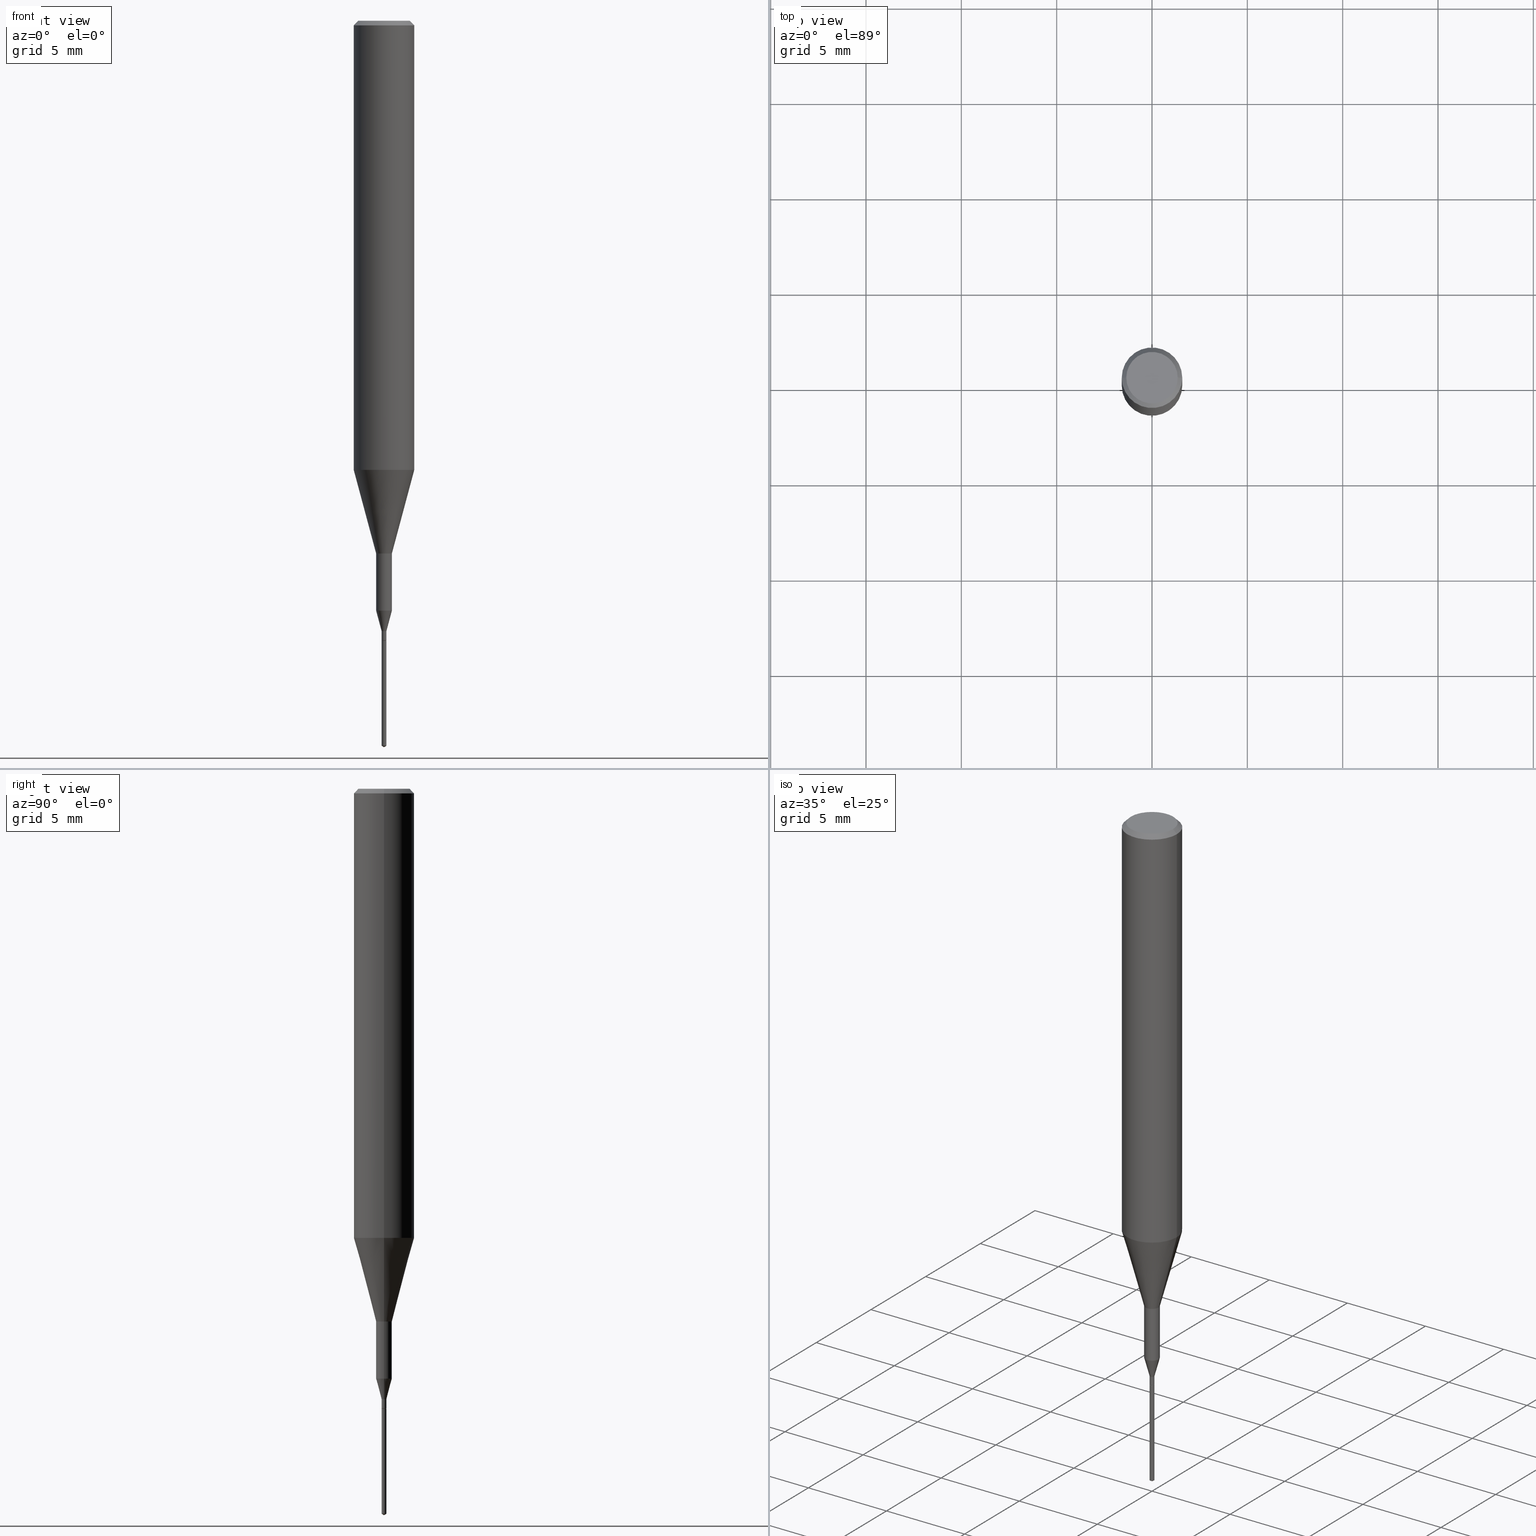
[diagram: canonical four-view strip — front | top / right | iso, engineering-drawing reading convention]
A machine part, canonical four-view strip (front | top / right | iso — engineering-drawing reading convention). The complete STEP part file that produces these views, byte-faithful:
ISO-10303-21;
HEADER;
FILE_DESCRIPTION (( 'STEP AP203' ),
    '1' );
FILE_NAME ('07109.STEP',
    '2024-04-19T13:30:04',
    ( '' ),
    ( '' ),
    'SwSTEP 2.0',
    'SolidWorks 2023',
    '' );
FILE_SCHEMA (( 'CONFIG_CONTROL_DESIGN' ));
ENDSEC;

DATA;
#1 = CARTESIAN_POINT ( 'NONE',  ( 3.130200071916974821E-29, -4.469096113719226630E-15, -1.280000000000000027 ) ) ;
#2 = CARTESIAN_POINT ( 'NONE',  ( 3.665052236019357010E-29, -5.241734381312934415E-15, -1.500000000000000222 ) ) ;
#3 = DIRECTION ( 'NONE',  ( 1.000000000000000000, -6.982962677686266711E-15, 4.876176775795936353E-29 ) ) ;
#4 = ADVANCED_FACE ( 'NONE', ( #55 ), #269, .T. ) ;
#5 = FACE_OUTER_BOUND ( 'NONE', #493, .T. ) ;
#6 = FACE_OUTER_BOUND ( 'NONE', #585, .T. ) ;
#7 = AXIS2_PLACEMENT_3D ( 'NONE', #145, #197, #147 ) ;
#8 = ORIENTED_EDGE ( 'NONE', *, *, #509, .T. ) ;
#9 = AXIS2_PLACEMENT_3D ( 'NONE', #525, #311, #396 ) ;
#10 = APPROVAL_DATE_TIME ( #108, #511 ) ;
#11 = EDGE_LOOP ( 'NONE', ( #356, #91, #225, #260 ) ) ;
#12 = EDGE_CURVE ( 'NONE', #519, #176, #377, .T. ) ;
#13 = COORDINATED_UNIVERSAL_TIME_OFFSET ( 5, 0, .BEHIND. ) ;
#14 = CARTESIAN_POINT ( 'NONE',  ( 0.06250000000000011102, -3.674409299134196572E-15, -0.9273926501499395458 ) ) ;
#15 = SECURITY_CLASSIFICATION_LEVEL ( 'unclassified' ) ;
#16 = CARTESIAN_POINT ( 'NONE',  ( 1.415359278996747967E-46, -2.020757941330909984E-32, -5.787680772770392401E-18 ) ) ;
#17 = CIRCLE ( 'NONE', #427, 0.01625000000000000056 ) ;
#18 = APPLICATION_PROTOCOL_DEFINITION ( 'international standard', 'config_control_design', 1994, #354 ) ;
#19 = DIRECTION ( 'NONE',  ( -6.982962677686265922E-15, -1.000000000000000000, 0.000000000000000000 ) ) ;
#20 = LOCAL_TIME ( 9, 30, 4.000000000000000000, #96 ) ;
#21 = MECHANICAL_CONTEXT ( 'NONE', #354, 'mechanical' ) ;
#22 = DIRECTION ( 'NONE',  ( -2.448441422466597749E-29, 3.487224383137281571E-15, 1.000000000000000000 ) ) ;
#23 = EDGE_CURVE ( 'NONE', #314, #226, #196, .T. ) ;
#24 = FACE_OUTER_BOUND ( 'NONE', #447, .T. ) ;
#25 = VECTOR ( 'NONE', #150, 39.37007874015748854 ) ;
#26 = CARTESIAN_POINT ( 'NONE',  ( -0.004900000000000062292, -4.399190132211608206E-15, -1.260399999999999965 ) ) ;
#27 = ORIENTED_EDGE ( 'NONE', *, *, #82, .T. ) ;
#28 = EDGE_CURVE ( 'NONE', #315, #226, #297, .T. ) ;
#29 = FACE_OUTER_BOUND ( 'NONE', #397, .T. ) ;
#30 = ORIENTED_EDGE ( 'NONE', *, *, #245, .T. ) ;
#31 = DIRECTION ( 'NONE',  ( 1.000000000000000000, -6.982962677686289588E-15, 0.000000000000000000 ) ) ;
#32 = ORIENTED_EDGE ( 'NONE', *, *, #28, .F. ) ;
#33 = CARTESIAN_POINT ( 'NONE',  ( -3.421651712063140079E-17, -0.004900000000004468489, -1.280000000000000027 ) ) ;
#34 = DIMENSIONAL_EXPONENTS ( 1.000000000000000000, 0.000000000000000000, 0.000000000000000000, 0.000000000000000000, 0.000000000000000000, 0.000000000000000000, 0.000000000000000000 ) ;
#35 = ORIENTED_EDGE ( 'NONE', *, *, #359, .F. ) ;
#36 = AXIS2_PLACEMENT_3D ( 'NONE', #137, #458, #275 ) ;
#37 = AXIS2_PLACEMENT_3D ( 'NONE', #393, #500, #495 ) ;
#38 = CARTESIAN_POINT ( 'NONE',  ( 0.06250000000000005551, -4.364351673553920638E-16, 3.047610484872462323E-30 ) ) ;
#39 = ORIENTED_EDGE ( 'NONE', *, *, #154, .F. ) ;
#40 = FACE_OUTER_BOUND ( 'NONE', #159, .T. ) ;
#41 = ORIENTED_EDGE ( 'NONE', *, *, #509, .F. ) ;
#42 = CONICAL_SURFACE ( 'NONE', #452, 0.06250000000000000000, 0.7853981633974453924 ) ;
#43 = LENGTH_MEASURE_WITH_UNIT ( LENGTH_MEASURE( 0.02539999999999999897 ), #542 );
#44 = ORIENTED_EDGE ( 'NONE', *, *, #346, .F. ) ;
#45 = CIRCLE ( 'NONE', #582, 0.004899999999999999842 ) ;
#46 = ADVANCED_FACE ( 'NONE', ( #590 ), #444, .T. ) ;
#47 = CARTESIAN_POINT ( 'NONE',  ( 7.076796394983739835E-47, -1.010378970665454992E-32, -2.893840386385196200E-18 ) ) ;
#48 = ORGANIZATION ( 'UNSPECIFIED', 'UNSPECIFIED', '' ) ;
#49 = FACE_OUTER_BOUND ( 'NONE', #257, .T. ) ;
#50 = CARTESIAN_POINT ( 'NONE',  ( 3.130200071916974821E-29, -4.469096113719226630E-15, -1.280000000000000027 ) ) ;
#51 = ORIENTED_EDGE ( 'NONE', *, *, #64, .T. ) ;
#52 = DIRECTION ( 'NONE',  ( -2.445468806185136597E-29, 3.491481338843145583E-15, 1.000000000000000000 ) ) ;
#53 = VECTOR ( 'NONE', #93, 39.37007874015748143 ) ;
#54 = ADVANCED_FACE ( 'NONE', ( #5 ), #279, .T. ) ;
#55 = FACE_OUTER_BOUND ( 'NONE', #221, .T. ) ;
#56 = APPROVAL_DATE_TIME ( #288, #503 ) ;
#57 = FACE_OUTER_BOUND ( 'NONE', #253, .T. ) ;
#58 = AXIS2_PLACEMENT_3D ( 'NONE', #47, #365, #233 ) ;
#59 =( NAMED_UNIT ( * ) PLANE_ANGLE_UNIT ( ) SI_UNIT ( $, .RADIAN. ) );
#60 = DIRECTION ( 'NONE',  ( 0.2588190451025214611, 1.565188264969620982E-15, 0.9659258262890679791 ) ) ;
#61 = CC_DESIGN_APPROVAL ( #511, ( #575 ) ) ;
#62 = COORDINATED_UNIVERSAL_TIME_OFFSET ( 5, 0, .BEHIND. ) ;
#63 = FACE_OUTER_BOUND ( 'NONE', #445, .T. ) ;
#64 = EDGE_CURVE ( 'NONE', #314, #315, #89, .T. ) ;
#65 = AXIS2_PLACEMENT_3D ( 'NONE', #126, #520, #489 ) ;
#66 = CARTESIAN_POINT ( 'NONE',  ( -0.06250000000000000000, 4.037025298037369984E-16, -0.009375000000000063838 ) ) ;
#67 = DIRECTION ( 'NONE',  ( -2.445468806185136597E-29, 3.491481338843145583E-15, 1.000000000000000000 ) ) ;
#68 = DIRECTION ( 'NONE',  ( 1.000000000000000000, -6.982962677686208335E-15, 0.000000000000000000 ) ) ;
#69 = EDGE_CURVE ( 'NONE', #483, #395, #408, .T. ) ;
#70 = VERTEX_POINT ( 'NONE', #504 ) ;
#71 = AXIS2_PLACEMENT_3D ( 'NONE', #265, #576, #165 ) ;
#72 = DIRECTION ( 'NONE',  ( -2.445468806185136877E-29, 3.491481338843145188E-15, 1.000000000000000000 ) ) ;
#73 = CIRCLE ( 'NONE', #410, 0.004900000000000062292 ) ;
#74 = ORIENTED_EDGE ( 'NONE', *, *, #69, .F. ) ;
#75 = FACE_OUTER_BOUND ( 'NONE', #482, .T. ) ;
#76 = VERTEX_POINT ( 'NONE', #286 ) ;
#77 = LOCAL_TIME ( 9, 30, 4.000000000000000000, #473 ) ;
#78 = ORIENTED_EDGE ( 'NONE', *, *, #331, .T. ) ;
#79 = CARTESIAN_POINT ( 'NONE',  ( 2.978681816311108345E-29, -4.252768201212663220E-15, -1.218041223334093370 ) ) ;
#80 = ORIENTED_EDGE ( 'NONE', *, *, #380, .F. ) ;
#81 = CIRCLE ( 'NONE', #276, 0.004899999999999999842 ) ;
#82 = EDGE_CURVE ( 'NONE', #519, #521, #366, .T. ) ;
#83 = DIRECTION ( 'NONE',  ( 0.2588190451025199068, 1.565188264969633603E-15, 0.9659258262890685343 ) ) ;
#84 = ORIENTED_EDGE ( 'NONE', *, *, #166, .F. ) ;
#85 = CARTESIAN_POINT ( 'NONE',  ( 2.267909797027042920E-29, -3.237974131778804114E-15, -0.9273926501499395458 ) ) ;
#86 = AXIS2_PLACEMENT_3D ( 'NONE', #50, #589, #449 ) ;
#87 = DIRECTION ( 'NONE',  ( -2.448441422466597749E-29, 3.487224383137281571E-15, 1.000000000000000000 ) ) ;
#88 = PLANE ( 'NONE',  #303 ) ;
#89 = LINE ( 'NONE', #547, #319 ) ;
#90 = DIRECTION ( 'NONE',  ( 1.000000000000000000, -6.982962677686289588E-15, 0.000000000000000000 ) ) ;
#91 = ORIENTED_EDGE ( 'NONE', *, *, #167, .T. ) ;
#92 = CARTESIAN_POINT ( 'NONE',  ( 0.000000000000000000, 0.000000000000000000, 0.000000000000000000 ) ) ;
#93 = DIRECTION ( 'NONE',  ( -2.445468806185136877E-29, 3.491481338843145188E-15, 1.000000000000000000 ) ) ;
#94 = CARTESIAN_POINT ( 'NONE',  ( 2.978681816311108345E-29, -4.252768201212663220E-15, -1.218041223334093370 ) ) ;
#95 = DIRECTION ( 'NONE',  ( -2.448441422466597749E-29, 3.487224383137281571E-15, 1.000000000000000000 ) ) ;
#96 = COORDINATED_UNIVERSAL_TIME_OFFSET ( 5, 0, .BEHIND. ) ;
#97 = CIRCLE ( 'NONE', #177, 0.06250000000000000000 ) ;
#98 = CARTESIAN_POINT ( 'NONE',  ( -0.01625000000000000056, -4.137305006651647035E-15, -1.218041223334093370 ) ) ;
#99 = DIRECTION ( 'NONE',  ( 1.000000000000000000, 0.000000000000000000, 0.000000000000000000 ) ) ;
#100 = CARTESIAN_POINT ( 'NONE',  ( -3.421651712062608214E-17, -0.004900000000005224829, -1.497055782966765225 ) ) ;
#101 = DESIGN_CONTEXT ( 'detailed design', #175, 'design' ) ;
#102 =( CONVERSION_BASED_UNIT ( 'INCH', #43 ) LENGTH_UNIT ( ) NAMED_UNIT ( #34 ) );
#103 = DIRECTION ( 'NONE',  ( -0.7071067811866119657, 7.493145998870586085E-15, 0.7071067811864829578 ) ) ;
#104 = EDGE_CURVE ( 'NONE', #70, #171, #163, .T. ) ;
#105 = APPROVAL_ROLE ( '' ) ;
#106 = VECTOR ( 'NONE', #184, 39.37007874015748143 ) ;
#107 = LINE ( 'NONE', #14, #386 ) ;
#108 = DATE_AND_TIME ( #471, #324 ) ;
#109 = CARTESIAN_POINT ( 'NONE',  ( -0.004899999999999990301, -4.432533778997560896E-15, -1.279500000000000082 ) ) ;
#110 = CONICAL_SURFACE ( 'NONE', #371, 0.01625000000000000056, 0.2617993877991485197 ) ;
#111 = EDGE_CURVE ( 'NONE', #70, #394, #372, .T. ) ;
#112 = CARTESIAN_POINT ( 'NONE',  ( 3.672662133699897044E-29, -5.230836574705923146E-15, -1.500000000000000222 ) ) ;
#113 = VERTEX_POINT ( 'NONE', #328 ) ;
#114 = DIRECTION ( 'NONE',  ( -6.982962677686265922E-15, -1.000000000000000000, 0.000000000000000000 ) ) ;
#115 = EDGE_LOOP ( 'NONE', ( #127, #264, #234, #270 ) ) ;
#116 = CONICAL_SURFACE ( 'NONE', #539, 0.01625000000000000056, 0.2617993877991485197 ) ;
#117 = DIRECTION ( 'NONE',  ( 1.000000000000000000, -6.982962677686258033E-15, 0.000000000000000000 ) ) ;
#118 = CIRCLE ( 'NONE', #280, 0.004900000000000062292 ) ;
#119 = ORIENTED_EDGE ( 'NONE', *, *, #298, .T. ) ;
#120 = ORIENTED_EDGE ( 'NONE', *, *, #331, .F. ) ;
#121 = CYLINDRICAL_SURFACE ( 'NONE', #291, 0.01624999999999999709 ) ;
#122 = EDGE_LOOP ( 'NONE', ( #541, #527, #523, #181 ) ) ;
#123 = ORIENTED_EDGE ( 'NONE', *, *, #359, .T. ) ;
#124 = ADVANCED_FACE ( 'NONE', ( #49 ), #284, .T. ) ;
#125 = CC_DESIGN_APPROVAL ( #170, ( #133 ) ) ;
#126 = CARTESIAN_POINT ( 'NONE',  ( 2.267909797027042920E-29, -3.237974131778804114E-15, -0.9273926501499395458 ) ) ;
#127 = ORIENTED_EDGE ( 'NONE', *, *, #245, .F. ) ;
#128 = DIRECTION ( 'NONE',  ( -2.445468806185136597E-29, 3.491481338843145583E-15, 1.000000000000000000 ) ) ;
#129 = EDGE_LOOP ( 'NONE', ( #168, #160, #32 ) ) ;
#130 = CARTESIAN_POINT ( 'NONE',  ( 2.690015686803650369E-29, -3.840629472727460101E-15, -1.100000000000000089 ) ) ;
#131 = ADVANCED_FACE ( 'NONE', ( #374 ), #463, .T. ) ;
#132 = CARTESIAN_POINT ( 'NONE',  ( 0.01624999999999999709, -1.134731435124018242E-16, 7.923787260668394963E-31 ) ) ;
#133 = SECURITY_CLASSIFICATION ( '', '', #15 ) ;
#134 = FACE_OUTER_BOUND ( 'NONE', #115, .T. ) ;
#135 = VERTEX_POINT ( 'NONE', #210 ) ;
#136 = DIRECTION ( 'NONE',  ( 1.000000000000000000, -6.982962677686258033E-15, 0.000000000000000000 ) ) ;
#137 = CARTESIAN_POINT ( 'NONE',  ( 3.661648441918723034E-29, -5.226018332581883339E-15, -1.497055782966765225 ) ) ;
#138 = CIRCLE ( 'NONE', #203, 0.004899999999999990301 ) ;
#139 = DIRECTION ( 'NONE',  ( -2.445468806185136597E-29, 3.491481338843145583E-15, 1.000000000000000000 ) ) ;
#140 = CARTESIAN_POINT ( 'NONE',  ( 3.130200071916974821E-29, -4.469096113719226630E-15, -1.280000000000000027 ) ) ;
#141 = CARTESIAN_POINT ( 'NONE',  ( 0.000000000000000000, 0.000000000000000000, 0.000000000000000000 ) ) ;
#142 = CARTESIAN_POINT ( 'NONE',  ( 3.130200071916974821E-29, -4.469096113719226630E-15, -1.280000000000000027 ) ) ;
#143 = PERSON_AND_ORGANIZATION ( #457, #48 ) ;
#144 = VECTOR ( 'NONE', #292, 39.37007874015748143 ) ;
#145 = CARTESIAN_POINT ( 'NONE',  ( 0.000000000000000000, 0.000000000000000000, 0.000000000000000000 ) ) ;
#146 = DATE_TIME_ROLE ( 'classification_date' ) ;
#147 = DIRECTION ( 'NONE',  ( 1.000000000000000000, -6.982962677686266711E-15, 4.876176775795935232E-29 ) ) ;
#148 = CC_DESIGN_PERSON_AND_ORGANIZATION_ASSIGNMENT ( #143, #198, ( #558 ) ) ;
#149 =( NAMED_UNIT ( * ) SI_UNIT ( $, .STERADIAN. ) SOLID_ANGLE_UNIT ( ) );
#150 = DIRECTION ( 'NONE',  ( 0.7071067811866119657, -2.468850131082932326E-15, 0.7071067811864829578 ) ) ;
#151 = APPROVAL_STATUS ( 'not_yet_approved' ) ;
#152 = CARTESIAN_POINT ( 'NONE',  ( -3.421651712063139463E-17, -0.004900000000004467622, -1.280000000000000027 ) ) ;
#153 = ORIENTED_EDGE ( 'NONE', *, *, #380, .T. ) ;
#154 = EDGE_CURVE ( 'NONE', #537, #113, #187, .T. ) ;
#155 = FACE_OUTER_BOUND ( 'NONE', #229, .T. ) ;
#156 = ORIENTED_EDGE ( 'NONE', *, *, #289, .F. ) ;
#157 = MANIFOLD_SOLID_BREP ( 'Body-Move/Copy2[1]', #581 ) ;
#158 = DIRECTION ( 'NONE',  ( -2.448441422466597749E-29, 3.487224383137281571E-15, 1.000000000000000000 ) ) ;
#159 = EDGE_LOOP ( 'NONE', ( #217, #501 ) ) ;
#160 = ORIENTED_EDGE ( 'NONE', *, *, #23, .T. ) ;
#161 = CARTESIAN_POINT ( 'NONE',  ( 3.481659405228151606E-17, 0.004899999999994773120, -1.497055782966765225 ) ) ;
#162 = VERTEX_POINT ( 'NONE', #421 ) ;
#163 = CIRCLE ( 'NONE', #588, 0.06250000000000011102 ) ;
#164 = ORIENTED_EDGE ( 'NONE', *, *, #111, .F. ) ;
#165 = DIRECTION ( 'NONE',  ( 1.000000000000000000, -6.982962677686266711E-15, 0.000000000000000000 ) ) ;
#166 = EDGE_CURVE ( 'NONE', #535, #519, #513, .T. ) ;
#167 = EDGE_CURVE ( 'NONE', #176, #362, #559, .T. ) ;
#168 = ORIENTED_EDGE ( 'NONE', *, *, #64, .F. ) ;
#169 = EDGE_CURVE ( 'NONE', #395, #171, #107, .T. ) ;
#170 = APPROVAL ( #299, 'UNSPECIFIED' ) ;
#171 = VERTEX_POINT ( 'NONE', #515 ) ;
#172 = DIRECTION ( 'NONE',  ( 1.000000000000000000, -6.982962677686267499E-15, 4.876176775795936353E-29 ) ) ;
#173 = EDGE_LOOP ( 'NONE', ( #39, #353, #119, #453 ) ) ;
#174 = CARTESIAN_POINT ( 'NONE',  ( 3.130200071916974821E-29, -4.469096113719226630E-15, -1.280000000000000027 ) ) ;
#175 = APPLICATION_CONTEXT ( 'configuration controlled 3d designs of mechanical parts and assemblies' ) ;
#176 = VERTEX_POINT ( 'NONE', #109 ) ;
#177 = AXIS2_PLACEMENT_3D ( 'NONE', #566, #341, #430 ) ;
#178 = EDGE_CURVE ( 'NONE', #76, #70, #472, .T. ) ;
#179 = CC_DESIGN_DATE_AND_TIME_ASSIGNMENT ( #295, #517, ( #558 ) ) ;
#180 = DIRECTION ( 'NONE',  ( 1.000000000000000000, -6.982962677686265922E-15, 0.000000000000000000 ) ) ;
#181 = ORIENTED_EDGE ( 'NONE', *, *, #461, .F. ) ;
#182 = CONICAL_SURFACE ( 'NONE', #249, 0.004399999999999999398, 0.7853981633975395393 ) ;
#183 = DIRECTION ( 'NONE',  ( -2.445468806185136597E-29, 3.491481338843145583E-15, 1.000000000000000000 ) ) ;
#184 = DIRECTION ( 'NONE',  ( -2.445468806185136877E-29, 3.491481338843145188E-15, 1.000000000000000000 ) ) ;
#185 = DIRECTION ( 'NONE',  ( 6.982962677686265922E-15, 1.000000000000000000, -3.487224383137281571E-15 ) ) ;
#186 = ORIENTED_EDGE ( 'NONE', *, *, #200, .F. ) ;
#187 = CIRCLE ( 'NONE', #266, 0.05312499999999999861 ) ;
#188 = EDGE_LOOP ( 'NONE', ( #490, #577, #350, #434 ) ) ;
#189 = DIRECTION ( 'NONE',  ( -2.445468806185136597E-29, 3.491481338843145583E-15, 1.000000000000000000 ) ) ;
#190 = DIRECTION ( 'NONE',  ( -5.985567269336013066E-15, -0.8571673007021206603, 0.5150380749100400557 ) ) ;
#191 = EDGE_CURVE ( 'NONE', #162, #317, #81, .T. ) ;
#192 = ADVANCED_FACE ( 'NONE', ( #57 ), #205, .T. ) ;
#193 = CC_DESIGN_DATE_AND_TIME_ASSIGNMENT ( #561, #146, ( #133 ) ) ;
#194 = AXIS2_PLACEMENT_3D ( 'NONE', #543, #364, #326 ) ;
#195 = DATE_AND_TIME ( #239, #77 ) ;
#196 = LINE ( 'NONE', #2, #278 ) ;
#197 = DIRECTION ( 'NONE',  ( -2.445468806185136597E-29, 3.491481338843145583E-15, 1.000000000000000000 ) ) ;
#198 = PERSON_AND_ORGANIZATION_ROLE ( 'creator' ) ;
#199 = AXIS2_PLACEMENT_3D ( 'NONE', #16, #381, #201 ) ;
#200 = EDGE_CURVE ( 'NONE', #532, #176, #244, .T. ) ;
#201 = DIRECTION ( 'NONE',  ( 1.000000000000000000, -6.982962677686266711E-15, 4.875930095424100059E-29 ) ) ;
#202 = AXIS2_PLACEMENT_3D ( 'NONE', #417, #273, #412 ) ;
#203 = AXIS2_PLACEMENT_3D ( 'NONE', #475, #357, #68 ) ;
#204 = PERSON_AND_ORGANIZATION ( #457, #48 ) ;
#205 = CYLINDRICAL_SURFACE ( 'NONE', #7, 0.06250000000000005551 ) ;
#206 = PERSON_AND_ORGANIZATION_ROLE ( 'design_owner' ) ;
#207 = CARTESIAN_POINT ( 'NONE',  ( -9.272647440831351840E-28, 1.320560130707024342E-13, 37.87007874015748143 ) ) ;
#208 = ORIENTED_EDGE ( 'NONE', *, *, #104, .F. ) ;
#209 = AXIS2_PLACEMENT_3D ( 'NONE', #254, #337, #426 ) ;
#210 = CARTESIAN_POINT ( 'NONE',  ( -0.01625000000000000056, -4.137305006651647035E-15, -1.218041223334093370 ) ) ;
#211 = ORIENTED_EDGE ( 'NONE', *, *, #200, .T. ) ;
#212 = DIRECTION ( 'NONE',  ( 0.7071067811865454633, -7.319954787623248157E-15, -0.7071067811865495711 ) ) ;
#213 = ORIENTED_EDGE ( 'NONE', *, *, #281, .F. ) ;
#214 = AXIS2_PLACEMENT_3D ( 'NONE', #92, #411, #3 ) ;
#215 = CYLINDRICAL_SURFACE ( 'NONE', #37, 0.06250000000000005551 ) ;
#216 = ORIENTED_EDGE ( 'NONE', *, *, #178, .F. ) ;
#217 = ORIENTED_EDGE ( 'NONE', *, *, #441, .T. ) ;
#218 = EDGE_CURVE ( 'NONE', #113, #394, #505, .T. ) ;
#219 = CARTESIAN_POINT ( 'NONE',  ( -0.06250000000000000000, -1.191264174815165938E-15, -0.009375000000000063838 ) ) ;
#220 = CC_DESIGN_PERSON_AND_ORGANIZATION_ASSIGNMENT ( #428, #422, ( #575 ) ) ;
#221 = EDGE_LOOP ( 'NONE', ( #392, #51, #35 ) ) ;
#222 = CARTESIAN_POINT ( 'NONE',  ( 3.130200071916974821E-29, -4.469096113719226630E-15, -1.280000000000000027 ) ) ;
#223 = ORIENTED_EDGE ( 'NONE', *, *, #388, .F. ) ;
#224 = DIRECTION ( 'NONE',  ( -2.445468806185136597E-29, 3.491481338843145583E-15, 1.000000000000000000 ) ) ;
#225 = ORIENTED_EDGE ( 'NONE', *, *, #470, .F. ) ;
#226 = VERTEX_POINT ( 'NONE', #100 ) ;
#227 = EDGE_CURVE ( 'NONE', #226, #317, #296, .T. ) ;
#228 = CARTESIAN_POINT ( 'NONE',  ( 0.05312499999999999861, -4.129888592719939842E-16, -5.787680772767651417E-18 ) ) ;
#229 = EDGE_LOOP ( 'NONE', ( #235, #574, #27, #223 ) ) ;
#230 = CYLINDRICAL_SURFACE ( 'NONE', #214, 0.004900000000000025863 ) ;
#231 = ORIENTED_EDGE ( 'NONE', *, *, #227, .T. ) ;
#232 = CIRCLE ( 'NONE', #9, 0.004899999999999998107 ) ;
#233 = DIRECTION ( 'NONE',  ( -1.000000000000000000, 6.982962677686265922E-15, -4.876176775795935793E-29 ) ) ;
#234 = ORIENTED_EDGE ( 'NONE', *, *, #431, .T. ) ;
#235 = ORIENTED_EDGE ( 'NONE', *, *, #167, .F. ) ;
#236 = DIRECTION ( 'NONE',  ( -2.445468806185136597E-29, 3.491481338843145583E-15, 1.000000000000000000 ) ) ;
#237 = ADVANCED_FACE ( 'NONE', ( #63 ), #116, .T. ) ;
#238 = EDGE_LOOP ( 'NONE', ( #216, #533, #587, #208 ) ) ;
#239 = CALENDAR_DATE ( 2024, 19, 4 ) ;
#240 = DIRECTION ( 'NONE',  ( 6.090539988449852588E-15, 0.8571673007021242130, 0.5150380749100341715 ) ) ;
#241 = AXIS2_PLACEMENT_3D ( 'NONE', #174, #189, #321 ) ;
#242 = COORDINATED_UNIVERSAL_TIME_OFFSET ( 5, 0, .BEHIND. ) ;
#243 = CONICAL_SURFACE ( 'NONE', #572, 0.06250000000000011102, 0.2617993877991501850 ) ;
#244 = LINE ( 'NONE', #385, #567 ) ;
#245 = EDGE_CURVE ( 'NONE', #362, #135, #429, .T. ) ;
#246 = PERSON_AND_ORGANIZATION_ROLE ( 'classification_officer' ) ;
#247 = DIRECTION ( 'NONE',  ( -2.445468806185136877E-29, 3.491481338843145188E-15, 1.000000000000000000 ) ) ;
#248 = CARTESIAN_POINT ( 'NONE',  ( 3.130200071916974821E-29, -4.469096113719226630E-15, -1.280000000000000027 ) ) ;
#249 = AXIS2_PLACEMENT_3D ( 'NONE', #222, #569, #31 ) ;
#250 = PERSON_AND_ORGANIZATION_ROLE ( 'creator' ) ;
#251 = CARTESIAN_POINT ( 'NONE',  ( 2.978681816311108345E-29, -4.252768201212663220E-15, -1.218041223334093370 ) ) ;
#252 = AXIS2_PLACEMENT_3D ( 'NONE', #546, #367, #272 ) ;
#253 = EDGE_LOOP ( 'NONE', ( #164, #439, #153, #345 ) ) ;
#254 = CARTESIAN_POINT ( 'NONE',  ( 2.690015686803650369E-29, -3.840629472727460101E-15, -1.100000000000000089 ) ) ;
#255 = CIRCLE ( 'NONE', #71, 0.06250000000000000000 ) ;
#256 = LINE ( 'NONE', #433, #480 ) ;
#257 = EDGE_LOOP ( 'NONE', ( #123, #524, #398, #401 ) ) ;
#258 = CARTESIAN_POINT ( 'NONE',  ( 0.000000000000000000, 0.000000000000000000, 0.000000000000000000 ) ) ;
#259 = CONICAL_SURFACE ( 'NONE', #241, 0.004399999999999999398, 0.7853981633975395393 ) ;
#260 = ORIENTED_EDGE ( 'NONE', *, *, #82, .F. ) ;
#261 = CC_DESIGN_PERSON_AND_ORGANIZATION_ASSIGNMENT ( #557, #206, ( #348 ) ) ;
#262 = DIRECTION ( 'NONE',  ( 1.000000000000000000, -6.982962677686258033E-15, 0.000000000000000000 ) ) ;
#263 = ORIENTED_EDGE ( 'NONE', *, *, #538, .T. ) ;
#264 = ORIENTED_EDGE ( 'NONE', *, *, #388, .T. ) ;
#265 = CARTESIAN_POINT ( 'NONE',  ( 2.292627005798581061E-31, -3.273263755165471417E-17, -0.009375000000000063838 ) ) ;
#266 = AXIS2_PLACEMENT_3D ( 'NONE', #510, #332, #294 ) ;
#267 = ORIENTED_EDGE ( 'NONE', *, *, #528, .F. ) ;
#268 = DIRECTION ( 'NONE',  ( 1.000000000000000000, -6.982962677686266711E-15, 4.876176775795936353E-29 ) ) ;
#269 = CONICAL_SURFACE ( 'NONE', #342, 65.52281426577137324, 1.029744258676674296 ) ;
#270 = ORIENTED_EDGE ( 'NONE', *, *, #339, .F. ) ;
#271 = ADVANCED_BREP_SHAPE_REPRESENTATION ( '07109', ( #157, #556, #378 ), #312 ) ;
#272 = DIRECTION ( 'NONE',  ( 1.000000000000000000, -6.982962677686267499E-15, 4.876176775795936353E-29 ) ) ;
#273 = DIRECTION ( 'NONE',  ( -2.445468806185136597E-29, 3.491481338843145583E-15, 1.000000000000000000 ) ) ;
#274 = DIRECTION ( 'NONE',  ( -2.445468806185136877E-29, 3.491481338843145188E-15, 1.000000000000000000 ) ) ;
#275 = DIRECTION ( 'NONE',  ( -6.982962677686265922E-15, -1.000000000000000000, 0.000000000000000000 ) ) ;
#276 = AXIS2_PLACEMENT_3D ( 'NONE', #248, #334, #19 ) ;
#277 = CARTESIAN_POINT ( 'NONE',  ( -0.01624999999999999709, 1.154631945610162595E-16, -7.993269521664220284E-31 ) ) ;
#278 = VECTOR ( 'NONE', #190, 39.37007874015748854 ) ;
#279 = CYLINDRICAL_SURFACE ( 'NONE', #440, 0.004899999999999998107 ) ;
#280 = AXIS2_PLACEMENT_3D ( 'NONE', #327, #52, #454 ) ;
#281 = EDGE_CURVE ( 'NONE', #395, #76, #560, .T. ) ;
#282 = EDGE_CURVE ( 'NONE', #315, #162, #290, .T. ) ;
#283 = CARTESIAN_POINT ( 'NONE',  ( 3.130200071916974821E-29, -4.469096113719226630E-15, -1.280000000000000027 ) ) ;
#284 = CYLINDRICAL_SURFACE ( 'NONE', #477, 0.004899999999999998107 ) ;
#285 = CARTESIAN_POINT ( 'NONE',  ( 0.004899999999999990301, -4.501566890170468963E-15, -1.279500000000000082 ) ) ;
#286 = CARTESIAN_POINT ( 'NONE',  ( -0.01624999999999999709, -3.931235642409045081E-15, -1.100000000000000089 ) ) ;
#287 = VECTOR ( 'NONE', #22, 39.37007874015748143 ) ;
#288 = DATE_AND_TIME ( #563, #20 ) ;
#289 = EDGE_CURVE ( 'NONE', #113, #537, #432, .T. ) ;
#290 = LINE ( 'NONE', #423, #287 ) ;
#291 = AXIS2_PLACEMENT_3D ( 'NONE', #399, #584, #172 ) ;
#292 = DIRECTION ( 'NONE',  ( -2.448441422466597749E-29, 3.487224383137281571E-15, 1.000000000000000000 ) ) ;
#293 = APPROVAL_DATE_TIME ( #195, #170 ) ;
#294 = DIRECTION ( 'NONE',  ( 1.000000000000000000, -6.982962677686266711E-15, 4.875930095424100059E-29 ) ) ;
#295 = DATE_AND_TIME ( #507, #349 ) ;
#296 = LINE ( 'NONE', #152, #144 ) ;
#297 = CIRCLE ( 'NONE', #36, 0.004899999999999998107 ) ;
#298 = EDGE_CURVE ( 'NONE', #437, #394, #97, .T. ) ;
#299 = APPROVAL_STATUS ( 'not_yet_approved' ) ;
#300 = ADVANCED_FACE ( 'NONE', ( #24 ), #387, .F. ) ;
#301 = EDGE_CURVE ( 'NONE', #394, #437, #255, .T. ) ;
#302 = DIRECTION ( 'NONE',  ( 1.000000000000000000, -6.982962677686258033E-15, 0.000000000000000000 ) ) ;
#303 = AXIS2_PLACEMENT_3D ( 'NONE', #283, #544, #185 ) ;
#304 = FACE_OUTER_BOUND ( 'NONE', #122, .T. ) ;
#305 = AXIS2_PLACEMENT_3D ( 'NONE', #306, #352, #262 ) ;
#306 = CARTESIAN_POINT ( 'NONE',  ( 2.978681816311108345E-29, -4.252768201212663220E-15, -1.218041223334093370 ) ) ;
#307 = ADVANCED_FACE ( 'NONE', ( #344 ), #42, .T. ) ;
#308 = ORIENTED_EDGE ( 'NONE', *, *, #282, .F. ) ;
#309 = CLOSED_SHELL ( 'NONE', ( #46, #451, #424, #526, #237, #484, #555, #300, #400, #382, #502, #402, #548, #192, #307, #549 ) ) ;
#310 = AXIS2_PLACEMENT_3D ( 'NONE', #130, #183, #460 ) ;
#311 = DIRECTION ( 'NONE',  ( -2.448441422466597749E-29, 3.487224383137281571E-15, 1.000000000000000000 ) ) ;
#312 =( GEOMETRIC_REPRESENTATION_CONTEXT ( 3 ) GLOBAL_UNCERTAINTY_ASSIGNED_CONTEXT ( ( #335 ) ) GLOBAL_UNIT_ASSIGNED_CONTEXT ( ( #102, #59, #149 ) ) REPRESENTATION_CONTEXT ( 'NONE', 'WORKASPACE' ) );
#313 = ORIENTED_EDGE ( 'NONE', *, *, #470, .T. ) ;
#314 = VERTEX_POINT ( 'NONE', #112 ) ;
#315 = VERTEX_POINT ( 'NONE', #161 ) ;
#316 = DIRECTION ( 'NONE',  ( 1.000000000000000000, -6.982962677686265922E-15, 4.876176775795935793E-29 ) ) ;
#317 = VERTEX_POINT ( 'NONE', #33 ) ;
#318 = DIRECTION ( 'NONE',  ( -2.445468806185136597E-29, 3.491481338843145583E-15, 1.000000000000000000 ) ) ;
#319 = VECTOR ( 'NONE', #240, 39.37007874015748143 ) ;
#320 = ORIENTED_EDGE ( 'NONE', *, *, #528, .T. ) ;
#321 = DIRECTION ( 'NONE',  ( 1.000000000000000000, -6.982962677686289588E-15, 0.000000000000000000 ) ) ;
#322 = CARTESIAN_POINT ( 'NONE',  ( 3.130200071916974821E-29, -4.469096113719226630E-15, -1.280000000000000027 ) ) ;
#323 = EDGE_LOOP ( 'NONE', ( #78, #263, #213, #74 ) ) ;
#324 = LOCAL_TIME ( 9, 30, 4.000000000000000000, #13 ) ;
#325 = CARTESIAN_POINT ( 'NONE',  ( -0.004399999999999999398, -4.435183006171671308E-15, -1.280000000000000027 ) ) ;
#326 = DIRECTION ( 'NONE',  ( -1.000000000000000000, 6.982962677686266711E-15, 0.000000000000000000 ) ) ;
#327 = CARTESIAN_POINT ( 'NONE',  ( 3.082268883315746308E-29, -4.400663079477901323E-15, -1.260399999999999965 ) ) ;
#328 = CARTESIAN_POINT ( 'NONE',  ( -0.05312499999999999861, 3.873362110279099094E-16, -5.787680772773044021E-18 ) ) ;
#329 = LINE ( 'NONE', #277, #419 ) ;
#330 = DIRECTION ( 'NONE',  ( -6.982962677686265922E-15, -1.000000000000000000, 0.000000000000000000 ) ) ;
#331 = EDGE_CURVE ( 'NONE', #483, #135, #351, .T. ) ;
#332 = DIRECTION ( 'NONE',  ( -2.445468806185136597E-29, 3.491481338843145583E-15, 1.000000000000000000 ) ) ;
#333 = VECTOR ( 'NONE', #462, 39.37007874015748143 ) ;
#334 = DIRECTION ( 'NONE',  ( -2.448441422466597749E-29, 3.487224383137281571E-15, 1.000000000000000000 ) ) ;
#335 = UNCERTAINTY_MEASURE_WITH_UNIT (LENGTH_MEASURE( 1.000000000000000082E-05 ), #102, 'distance_accuracy_value', 'NONE');
#336 = APPLICATION_PROTOCOL_DEFINITION ( 'international standard', 'config_control_design', 1994, #175 ) ;
#337 = DIRECTION ( 'NONE',  ( -2.445468806185136597E-29, 3.491481338843145583E-15, 1.000000000000000000 ) ) ;
#338 = DIRECTION ( 'NONE',  ( -6.982962677686266711E-15, -1.000000000000000000, 3.468864327941438414E-15 ) ) ;
#339 = EDGE_CURVE ( 'NONE', #135, #483, #17, .T. ) ;
#340 = PERSON_AND_ORGANIZATION ( #457, #48 ) ;
#341 = DIRECTION ( 'NONE',  ( -2.445468806185136597E-29, 3.491481338843145583E-15, 1.000000000000000000 ) ) ;
#342 = AXIS2_PLACEMENT_3D ( 'NONE', #414, #496, #368 ) ;
#343 = VECTOR ( 'NONE', #212, 39.37007874015748143 ) ;
#344 = FACE_OUTER_BOUND ( 'NONE', #583, .T. ) ;
#345 = ORIENTED_EDGE ( 'NONE', *, *, #301, .F. ) ;
#346 = EDGE_CURVE ( 'NONE', #537, #437, #478, .T. ) ;
#347 = DIRECTION ( 'NONE',  ( -2.438088387897960049E-29, 3.491481338843145188E-15, 1.000000000000000000 ) ) ;
#348 = PRODUCT ( '07109', '07109', '', ( #21 ) ) ;
#349 = LOCAL_TIME ( 9, 30, 4.000000000000000000, #242 ) ;
#350 = ORIENTED_EDGE ( 'NONE', *, *, #568, .F. ) ;
#351 = CIRCLE ( 'NONE', #305, 0.01625000000000000056 ) ;
#352 = DIRECTION ( 'NONE',  ( -2.445468806185136597E-29, 3.491481338843145583E-15, 1.000000000000000000 ) ) ;
#353 = ORIENTED_EDGE ( 'NONE', *, *, #346, .T. ) ;
#354 = APPLICATION_CONTEXT ( 'configuration controlled 3d designs of mechanical parts and assemblies' ) ;
#355 = DIRECTION ( 'NONE',  ( -2.445468806185136597E-29, 3.491481338843145583E-15, 1.000000000000000000 ) ) ;
#356 = ORIENTED_EDGE ( 'NONE', *, *, #12, .T. ) ;
#357 = DIRECTION ( 'NONE',  ( -2.445468806185136597E-29, 3.491481338843145583E-15, 1.000000000000000000 ) ) ;
#358 = ORIENTED_EDGE ( 'NONE', *, *, #431, .F. ) ;
#359 = EDGE_CURVE ( 'NONE', #226, #315, #232, .T. ) ;
#360 = CARTESIAN_POINT ( 'NONE',  ( 0.004900000000000062292, -4.434879596598564371E-15, -1.260399999999999965 ) ) ;
#361 = VECTOR ( 'NONE', #466, 39.37007874015748143 ) ;
#362 = VERTEX_POINT ( 'NONE', #26 ) ;
#363 = AXIS2_PLACEMENT_3D ( 'NONE', #258, #318, #268 ) ;
#364 = DIRECTION ( 'NONE',  ( 2.445468806185136597E-29, -3.491481338843145583E-15, -1.000000000000000000 ) ) ;
#365 = DIRECTION ( 'NONE',  ( 2.438088387897960049E-29, -3.491481338843145188E-15, -1.000000000000000000 ) ) ;
#366 = LINE ( 'NONE', #545, #333 ) ;
#367 = DIRECTION ( 'NONE',  ( -2.445468806185136597E-29, 3.491481338843145583E-15, 1.000000000000000000 ) ) ;
#368 = DIRECTION ( 'NONE',  ( -6.982962677686266711E-15, -1.000000000000000000, 3.468864327941438414E-15 ) ) ;
#369 = CYLINDRICAL_SURFACE ( 'NONE', #252, 0.01624999999999999709 ) ;
#370 = ORIENTED_EDGE ( 'NONE', *, *, #166, .T. ) ;
#371 = AXIS2_PLACEMENT_3D ( 'NONE', #94, #128, #136 ) ;
#372 = LINE ( 'NONE', #554, #53 ) ;
#373 = PERSON_AND_ORGANIZATION ( #457, #48 ) ;
#374 = FACE_OUTER_BOUND ( 'NONE', #129, .T. ) ;
#375 = VECTOR ( 'NONE', #247, 39.37007874015748143 ) ;
#376 = CARTESIAN_POINT ( 'NONE',  ( -0.06250000000000011102, -2.793884921928740709E-15, -0.9273926501499395458 ) ) ;
#377 = CIRCLE ( 'NONE', #202, 0.004899999999999990301 ) ;
#378 = AXIS2_PLACEMENT_3D ( 'NONE', #141, #553, #99 ) ;
#379 = APPROVAL_STATUS ( 'not_yet_approved' ) ;
#380 = EDGE_CURVE ( 'NONE', #171, #437, #438, .T. ) ;
#381 = DIRECTION ( 'NONE',  ( -2.445468806185136597E-29, 3.491481338843145583E-15, 1.000000000000000000 ) ) ;
#382 = ADVANCED_FACE ( 'NONE', ( #155 ), #522, .T. ) ;
#383 = LOCAL_TIME ( 9, 30, 4.000000000000000000, #62 ) ;
#384 = CALENDAR_DATE ( 2024, 19, 4 ) ;
#385 = CARTESIAN_POINT ( 'NONE',  ( -0.004399999999999999398, -4.437832233345782509E-15, -1.280000000000000027 ) ) ;
#386 = VECTOR ( 'NONE', #60, 39.37007874015748143 ) ;
#387 = PLANE ( 'NONE',  #506 ) ;
#388 = EDGE_CURVE ( 'NONE', #362, #521, #73, .T. ) ;
#389 = AXIS2_PLACEMENT_3D ( 'NONE', #551, #139, #180 ) ;
#390 = DIRECTION ( 'NONE',  ( 1.000000000000000000, -6.982962677686303787E-15, 0.000000000000000000 ) ) ;
#391 = ORIENTED_EDGE ( 'NONE', *, *, #218, .T. ) ;
#392 = ORIENTED_EDGE ( 'NONE', *, *, #23, .F. ) ;
#393 = CARTESIAN_POINT ( 'NONE',  ( 0.000000000000000000, 0.000000000000000000, 0.000000000000000000 ) ) ;
#394 = VERTEX_POINT ( 'NONE', #219 ) ;
#395 = VERTEX_POINT ( 'NONE', #486 ) ;
#396 = DIRECTION ( 'NONE',  ( -6.982962677686265922E-15, -1.000000000000000000, 0.000000000000000000 ) ) ;
#397 = EDGE_LOOP ( 'NONE', ( #487, #403, #578, #80 ) ) ;
#398 = ORIENTED_EDGE ( 'NONE', *, *, #441, .F. ) ;
#399 = CARTESIAN_POINT ( 'NONE',  ( 0.000000000000000000, 0.000000000000000000, 0.000000000000000000 ) ) ;
#400 = ADVANCED_FACE ( 'NONE', ( #75 ), #182, .T. ) ;
#401 = ORIENTED_EDGE ( 'NONE', *, *, #227, .F. ) ;
#402 = ADVANCED_FACE ( 'NONE', ( #304 ), #121, .T. ) ;
#403 = ORIENTED_EDGE ( 'NONE', *, *, #111, .T. ) ;
#404 = FACE_OUTER_BOUND ( 'NONE', #238, .T. ) ;
#405 = ORIENTED_EDGE ( 'NONE', *, *, #154, .T. ) ;
#406 = DIRECTION ( 'NONE',  ( 1.000000000000000000, -6.982962677686265922E-15, 0.000000000000000000 ) ) ;
#407 = VECTOR ( 'NONE', #464, 39.37007874015748143 ) ;
#408 = LINE ( 'NONE', #132, #106 ) ;
#409 = EDGE_CURVE ( 'NONE', #176, #519, #138, .T. ) ;
#410 = AXIS2_PLACEMENT_3D ( 'NONE', #481, #355, #390 ) ;
#411 = DIRECTION ( 'NONE',  ( -2.445468806185136597E-29, 3.491481338843145583E-15, 1.000000000000000000 ) ) ;
#412 = DIRECTION ( 'NONE',  ( 1.000000000000000000, -6.982962677686208335E-15, 0.000000000000000000 ) ) ;
#413 = CARTESIAN_POINT ( 'NONE',  ( 0.01625000000000000056, -4.366241344725064897E-15, -1.218041223334093370 ) ) ;
#414 = CARTESIAN_POINT ( 'NONE',  ( -9.272647440831351840E-28, 1.320560130707024342E-13, 37.87007874015748143 ) ) ;
#415 = CC_DESIGN_SECURITY_CLASSIFICATION ( #133, ( #575 ) ) ;
#416 = FACE_OUTER_BOUND ( 'NONE', #479, .T. ) ;
#417 = CARTESIAN_POINT ( 'NONE',  ( 3.128977337513882580E-29, -4.467350373049805126E-15, -1.279500000000000082 ) ) ;
#418 = CARTESIAN_POINT ( 'NONE',  ( 2.267909797027042920E-29, -3.237974131778804114E-15, -0.9273926501499395458 ) ) ;
#419 = VECTOR ( 'NONE', #274, 39.37007874015748143 ) ;
#420 = APPROVAL_ROLE ( '' ) ;
#421 = CARTESIAN_POINT ( 'NONE',  ( 3.481659405228154687E-17, 0.004899999999995530327, -1.280000000000000027 ) ) ;
#422 = PERSON_AND_ORGANIZATION_ROLE ( 'design_supplier' ) ;
#423 = CARTESIAN_POINT ( 'NONE',  ( 3.481659405227619125E-17, 0.004899999999995529459, -1.280000000000000027 ) ) ;
#424 = ADVANCED_FACE ( 'NONE', ( #536 ), #508, .T. ) ;
#425 = ORIENTED_EDGE ( 'NONE', *, *, #12, .F. ) ;
#426 = DIRECTION ( 'NONE',  ( 1.000000000000000000, -6.982962677686259611E-15, 0.000000000000000000 ) ) ;
#427 = AXIS2_PLACEMENT_3D ( 'NONE', #79, #224, #117 ) ;
#428 = PERSON_AND_ORGANIZATION ( #457, #48 ) ;
#429 = LINE ( 'NONE', #98, #361 ) ;
#430 = DIRECTION ( 'NONE',  ( 1.000000000000000000, -6.982962677686266711E-15, 0.000000000000000000 ) ) ;
#431 = EDGE_CURVE ( 'NONE', #521, #483, #256, .T. ) ;
#432 = CIRCLE ( 'NONE', #199, 0.05312499999999999861 ) ;
#433 = CARTESIAN_POINT ( 'NONE',  ( 0.01625000000000000056, -4.366241344725064897E-15, -1.218041223334093370 ) ) ;
#434 = ORIENTED_EDGE ( 'NONE', *, *, #169, .F. ) ;
#435 = CARTESIAN_POINT ( 'NONE',  ( 3.130200071916974821E-29, -4.469096113719226630E-15, -1.280000000000000027 ) ) ;
#436 = CIRCLE ( 'NONE', #86, 0.004399999999999999398 ) ;
#437 = VERTEX_POINT ( 'NONE', #573 ) ;
#438 = LINE ( 'NONE', #38, #499 ) ;
#439 = ORIENTED_EDGE ( 'NONE', *, *, #104, .T. ) ;
#440 = AXIS2_PLACEMENT_3D ( 'NONE', #140, #95, #330 ) ;
#441 = EDGE_CURVE ( 'NONE', #317, #162, #45, .T. ) ;
#442 = CARTESIAN_POINT ( 'NONE',  ( 2.292627005798581061E-31, -3.273263755165471417E-17, -0.009375000000000063838 ) ) ;
#443 = ORIENTED_EDGE ( 'NONE', *, *, #191, .F. ) ;
#444 = CONICAL_SURFACE ( 'NONE', #194, 0.06250000000000000000, 0.7853981633974453924 ) ;
#445 = EDGE_LOOP ( 'NONE', ( #313, #30, #120, #358 ) ) ;
#446 = DIRECTION ( 'NONE',  ( -1.000000000000000000, 6.982962677686266711E-15, 0.000000000000000000 ) ) ;
#447 = EDGE_LOOP ( 'NONE', ( #267, #41 ) ) ;
#448 = AXIS2_PLACEMENT_3D ( 'NONE', #1, #497, #90 ) ;
#449 = DIRECTION ( 'NONE',  ( 1.000000000000000000, -6.982962677686289588E-15, 0.000000000000000000 ) ) ;
#450 = ORIENTED_EDGE ( 'NONE', *, *, #289, .T. ) ;
#451 = ADVANCED_FACE ( 'NONE', ( #29 ), #215, .T. ) ;
#452 = AXIS2_PLACEMENT_3D ( 'NONE', #442, #531, #446 ) ;
#453 = ORIENTED_EDGE ( 'NONE', *, *, #218, .F. ) ;
#454 = DIRECTION ( 'NONE',  ( 1.000000000000000000, -6.982962677686303787E-15, 0.000000000000000000 ) ) ;
#455 = DIRECTION ( 'NONE',  ( 1.000000000000000000, -6.982962677686265922E-15, 0.000000000000000000 ) ) ;
#456 = FACE_OUTER_BOUND ( 'NONE', #11, .T. ) ;
#457 = PERSON ( 'UNSPECIFIED', 'UNSPECIFIED', 'UNSPECIFIED', ('UNSPECIFIED'), ('UNSPECIFIED'), ('UNSPECIFIED') ) ;
#458 = DIRECTION ( 'NONE',  ( -2.448441422466597749E-29, 3.487224383137281571E-15, 1.000000000000000000 ) ) ;
#459 = CC_DESIGN_APPROVAL ( #503, ( #558 ) ) ;
#460 = DIRECTION ( 'NONE',  ( 1.000000000000000000, -6.982962677686259611E-15, 0.000000000000000000 ) ) ;
#461 = EDGE_CURVE ( 'NONE', #76, #395, #529, .T. ) ;
#462 = DIRECTION ( 'NONE',  ( -2.445468806185136877E-29, 3.491481338843145188E-15, 1.000000000000000000 ) ) ;
#463 = CONICAL_SURFACE ( 'NONE', #516, 65.52281426577137324, 1.029744258676674296 ) ;
#464 = DIRECTION ( 'NONE',  ( -0.7071067811865454633, 2.468850131082235367E-15, -0.7071067811865495711 ) ) ;
#465 = PERSON_AND_ORGANIZATION ( #457, #48 ) ;
#466 = DIRECTION ( 'NONE',  ( -0.2588190451025199068, 5.211531920934540787E-15, 0.9659258262890685343 ) ) ;
#467 = CC_DESIGN_PERSON_AND_ORGANIZATION_ASSIGNMENT ( #514, #250, ( #575 ) ) ;
#468 = SHAPE_DEFINITION_REPRESENTATION ( #570, #271 ) ;
#469 = DIRECTION ( 'NONE',  ( -2.448441422466597749E-29, 3.487224383137281571E-15, 1.000000000000000000 ) ) ;
#470 = EDGE_CURVE ( 'NONE', #521, #362, #118, .T. ) ;
#471 = CALENDAR_DATE ( 2024, 19, 4 ) ;
#472 = LINE ( 'NONE', #376, #488 ) ;
#473 = COORDINATED_UNIVERSAL_TIME_OFFSET ( 5, 0, .BEHIND. ) ;
#474 = DIRECTION ( 'NONE',  ( -6.982962677686265922E-15, -1.000000000000000000, 0.000000000000000000 ) ) ;
#475 = CARTESIAN_POINT ( 'NONE',  ( 3.128977337513882580E-29, -4.467350373049805126E-15, -1.279500000000000082 ) ) ;
#476 = ORIENTED_EDGE ( 'NONE', *, *, #301, .T. ) ;
#477 = AXIS2_PLACEMENT_3D ( 'NONE', #322, #87, #474 ) ;
#478 = LINE ( 'NONE', #579, #343 ) ;
#479 = EDGE_LOOP ( 'NONE', ( #450, #405 ) ) ;
#480 = VECTOR ( 'NONE', #83, 39.37007874015748143 ) ;
#481 = CARTESIAN_POINT ( 'NONE',  ( 3.082268883315746308E-29, -4.400663079477901323E-15, -1.260399999999999965 ) ) ;
#482 = EDGE_LOOP ( 'NONE', ( #186, #8, #370, #580 ) ) ;
#483 = VERTEX_POINT ( 'NONE', #413 ) ;
#484 = ADVANCED_FACE ( 'NONE', ( #456 ), #230, .T. ) ;
#485 = CC_DESIGN_PERSON_AND_ORGANIZATION_ASSIGNMENT ( #465, #246, ( #133 ) ) ;
#486 = CARTESIAN_POINT ( 'NONE',  ( 0.01624999999999999709, -3.954102616239861778E-15, -1.100000000000000089 ) ) ;
#487 = ORIENTED_EDGE ( 'NONE', *, *, #568, .T. ) ;
#488 = VECTOR ( 'NONE', #562, 39.37007874015748143 ) ;
#489 = DIRECTION ( 'NONE',  ( 1.000000000000000000, -6.982962677686265922E-15, 0.000000000000000000 ) ) ;
#490 = ORIENTED_EDGE ( 'NONE', *, *, #281, .T. ) ;
#491 = FACE_OUTER_BOUND ( 'NONE', #323, .T. ) ;
#492 = ADVANCED_FACE ( 'NONE', ( #40 ), #88, .F. ) ;
#493 = EDGE_LOOP ( 'NONE', ( #308, #552, #231, #443 ) ) ;
#494 = CIRCLE ( 'NONE', #448, 0.004399999999999999398 ) ;
#495 = DIRECTION ( 'NONE',  ( 1.000000000000000000, -6.982962677686266711E-15, 4.876176775795935232E-29 ) ) ;
#496 = DIRECTION ( 'NONE',  ( -2.448441422466597749E-29, 3.487224383137281571E-15, 1.000000000000000000 ) ) ;
#497 = DIRECTION ( 'NONE',  ( -2.445468806185136597E-29, 3.491481338843145583E-15, 1.000000000000000000 ) ) ;
#498 = DIRECTION ( 'NONE',  ( -2.445468806185136597E-29, 3.491481338843145583E-15, 1.000000000000000000 ) ) ;
#499 = VECTOR ( 'NONE', #72, 39.37007874015748143 ) ;
#500 = DIRECTION ( 'NONE',  ( -2.445468806185136597E-29, 3.491481338843145583E-15, 1.000000000000000000 ) ) ;
#501 = ORIENTED_EDGE ( 'NONE', *, *, #191, .T. ) ;
#502 = ADVANCED_FACE ( 'NONE', ( #134 ), #110, .T. ) ;
#503 = APPROVAL ( #379, 'UNSPECIFIED' ) ;
#504 = CARTESIAN_POINT ( 'NONE',  ( -0.06250000000000011102, -2.793884921928740709E-15, -0.9273926501499395458 ) ) ;
#505 = LINE ( 'NONE', #66, #407 ) ;
#506 = AXIS2_PLACEMENT_3D ( 'NONE', #142, #347, #316 ) ;
#507 = CALENDAR_DATE ( 2024, 19, 4 ) ;
#508 = CONICAL_SURFACE ( 'NONE', #65, 0.06250000000000011102, 0.2617993877991501850 ) ;
#509 = EDGE_CURVE ( 'NONE', #532, #535, #494, .T. ) ;
#510 = CARTESIAN_POINT ( 'NONE',  ( 1.415359278996747967E-46, -2.020757941330909984E-32, -5.787680772770392401E-18 ) ) ;
#511 = APPROVAL ( #151, 'UNSPECIFIED' ) ;
#512 = APPROVAL_ROLE ( '' ) ;
#513 = LINE ( 'NONE', #518, #25 ) ;
#514 = PERSON_AND_ORGANIZATION ( #457, #48 ) ;
#515 = CARTESIAN_POINT ( 'NONE',  ( 0.06250000000000011102, -3.674409299134196572E-15, -0.9273926501499395458 ) ) ;
#516 = AXIS2_PLACEMENT_3D ( 'NONE', #207, #469, #338 ) ;
#517 = DATE_TIME_ROLE ( 'creation_date' ) ;
#518 = CARTESIAN_POINT ( 'NONE',  ( 0.004399999999999999398, -4.499821149501046670E-15, -1.280000000000000027 ) ) ;
#519 = VERTEX_POINT ( 'NONE', #285 ) ;
#520 = DIRECTION ( 'NONE',  ( -2.445468806185136597E-29, 3.491481338843145583E-15, 1.000000000000000000 ) ) ;
#521 = VERTEX_POINT ( 'NONE', #360 ) ;
#522 = CYLINDRICAL_SURFACE ( 'NONE', #363, 0.004900000000000025863 ) ;
#523 = ORIENTED_EDGE ( 'NONE', *, *, #69, .T. ) ;
#524 = ORIENTED_EDGE ( 'NONE', *, *, #282, .T. ) ;
#525 = CARTESIAN_POINT ( 'NONE',  ( 3.661648441918723034E-29, -5.226018332581883339E-15, -1.497055782966765225 ) ) ;
#526 = ADVANCED_FACE ( 'NONE', ( #491 ), #369, .T. ) ;
#527 = ORIENTED_EDGE ( 'NONE', *, *, #339, .T. ) ;
#528 = EDGE_CURVE ( 'NONE', #535, #532, #436, .T. ) ;
#529 = CIRCLE ( 'NONE', #310, 0.01624999999999999709 ) ;
#530 = APPROVAL_PERSON_ORGANIZATION ( #204, #503, #105 ) ;
#531 = DIRECTION ( 'NONE',  ( 2.445468806185136597E-29, -3.491481338843145583E-15, -1.000000000000000000 ) ) ;
#532 = VERTEX_POINT ( 'NONE', #325 ) ;
#533 = ORIENTED_EDGE ( 'NONE', *, *, #461, .T. ) ;
#534 = APPROVAL_PERSON_ORGANIZATION ( #340, #170, #512 ) ;
#535 = VERTEX_POINT ( 'NONE', #540 ) ;
#536 = FACE_OUTER_BOUND ( 'NONE', #188, .T. ) ;
#537 = VERTEX_POINT ( 'NONE', #228 ) ;
#538 = EDGE_CURVE ( 'NONE', #135, #76, #329, .T. ) ;
#539 = AXIS2_PLACEMENT_3D ( 'NONE', #251, #67, #302 ) ;
#540 = CARTESIAN_POINT ( 'NONE',  ( 0.004399999999999999398, -4.499821149501046670E-15, -1.280000000000000027 ) ) ;
#541 = ORIENTED_EDGE ( 'NONE', *, *, #538, .F. ) ;
#542 =( LENGTH_UNIT ( ) NAMED_UNIT ( * ) SI_UNIT ( $, .METRE. ) );
#543 = CARTESIAN_POINT ( 'NONE',  ( 2.292627005798581061E-31, -3.273263755165471417E-17, -0.009375000000000063838 ) ) ;
#544 = DIRECTION ( 'NONE',  ( 2.448441422466597469E-29, -3.487224383137281571E-15, -1.000000000000000000 ) ) ;
#545 = CARTESIAN_POINT ( 'NONE',  ( 0.004900000000000025863, -3.421651712066288743E-17, 2.389326620140021402E-31 ) ) ;
#546 = CARTESIAN_POINT ( 'NONE',  ( 0.000000000000000000, 0.000000000000000000, 0.000000000000000000 ) ) ;
#547 = CARTESIAN_POINT ( 'NONE',  ( 3.672728863519792168E-29, -5.230836574705921568E-15, -1.500000000000000222 ) ) ;
#548 = ADVANCED_FACE ( 'NONE', ( #404 ), #243, .T. ) ;
#549 = ADVANCED_FACE ( 'NONE', ( #416 ), #586, .F. ) ;
#550 = PRODUCT_RELATED_PRODUCT_CATEGORY ( 'detail', '', ( #348 ) ) ;
#551 = CARTESIAN_POINT ( 'NONE',  ( 2.267909797027042920E-29, -3.237974131778804114E-15, -0.9273926501499395458 ) ) ;
#552 = ORIENTED_EDGE ( 'NONE', *, *, #28, .T. ) ;
#553 = DIRECTION ( 'NONE',  ( 0.000000000000000000, 0.000000000000000000, 1.000000000000000000 ) ) ;
#554 = CARTESIAN_POINT ( 'NONE',  ( -0.06250000000000005551, 4.440892098500630106E-16, -3.074334431409318916E-30 ) ) ;
#555 = ADVANCED_FACE ( 'NONE', ( #6 ), #259, .T. ) ;
#556 = MANIFOLD_SOLID_BREP ( 'Body-Move/Copy2[2]', #309 ) ;
#557 = PERSON_AND_ORGANIZATION ( #457, #48 ) ;
#558 = PRODUCT_DEFINITION ( 'UNKNOWN', '', #575, #101 ) ;
#559 = LINE ( 'NONE', #564, #375 ) ;
#560 = CIRCLE ( 'NONE', #209, 0.01624999999999999709 ) ;
#561 = DATE_AND_TIME ( #384, #383 ) ;
#562 = DIRECTION ( 'NONE',  ( -0.2588190451025214611, 5.211531920934550253E-15, 0.9659258262890679791 ) ) ;
#563 = CALENDAR_DATE ( 2024, 19, 4 ) ;
#564 = CARTESIAN_POINT ( 'NONE',  ( -0.004900000000000025863, 3.481659405224509287E-17, -2.410278194224916843E-31 ) ) ;
#565 = APPROVAL_PERSON_ORGANIZATION ( #373, #511, #420 ) ;
#566 = CARTESIAN_POINT ( 'NONE',  ( 2.292627005798581061E-31, -3.273263755165471417E-17, -0.009375000000000063838 ) ) ;
#567 = VECTOR ( 'NONE', #103, 39.37007874015748854 ) ;
#568 = EDGE_CURVE ( 'NONE', #171, #70, #571, .T. ) ;
#569 = DIRECTION ( 'NONE',  ( -2.445468806185136597E-29, 3.491481338843145583E-15, 1.000000000000000000 ) ) ;
#570 = PRODUCT_DEFINITION_SHAPE ( 'NONE', 'NONE',  #558 ) ;
#571 = CIRCLE ( 'NONE', #389, 0.06250000000000011102 ) ;
#572 = AXIS2_PLACEMENT_3D ( 'NONE', #85, #236, #406 ) ;
#573 = CARTESIAN_POINT ( 'NONE',  ( 0.06250000000000000000, -4.691678049070463404E-16, -0.009375000000000063838 ) ) ;
#574 = ORIENTED_EDGE ( 'NONE', *, *, #409, .T. ) ;
#575 = PRODUCT_DEFINITION_FORMATION_WITH_SPECIFIED_SOURCE ( 'ANY', '', #348, .NOT_KNOWN. ) ;
#576 = DIRECTION ( 'NONE',  ( -2.445468806185136597E-29, 3.491481338843145583E-15, 1.000000000000000000 ) ) ;
#577 = ORIENTED_EDGE ( 'NONE', *, *, #178, .T. ) ;
#578 = ORIENTED_EDGE ( 'NONE', *, *, #298, .F. ) ;
#579 = CARTESIAN_POINT ( 'NONE',  ( 0.06250000000000000000, -4.615137624123753937E-16, -0.009375000000000063838 ) ) ;
#580 = ORIENTED_EDGE ( 'NONE', *, *, #409, .F. ) ;
#581 = CLOSED_SHELL ( 'NONE', ( #124, #4, #131, #54, #492 ) ) ;
#582 = AXIS2_PLACEMENT_3D ( 'NONE', #435, #158, #114 ) ;
#583 = EDGE_LOOP ( 'NONE', ( #44, #156, #391, #476 ) ) ;
#584 = DIRECTION ( 'NONE',  ( -2.445468806185136597E-29, 3.491481338843145583E-15, 1.000000000000000000 ) ) ;
#585 = EDGE_LOOP ( 'NONE', ( #320, #211, #425, #84 ) ) ;
#586 = PLANE ( 'NONE',  #58 ) ;
#587 = ORIENTED_EDGE ( 'NONE', *, *, #169, .T. ) ;
#588 = AXIS2_PLACEMENT_3D ( 'NONE', #418, #498, #455 ) ;
#589 = DIRECTION ( 'NONE',  ( -2.445468806185136597E-29, 3.491481338843145583E-15, 1.000000000000000000 ) ) ;
#590 = FACE_OUTER_BOUND ( 'NONE', #173, .T. ) ;
ENDSEC;
END-ISO-10303-21;
